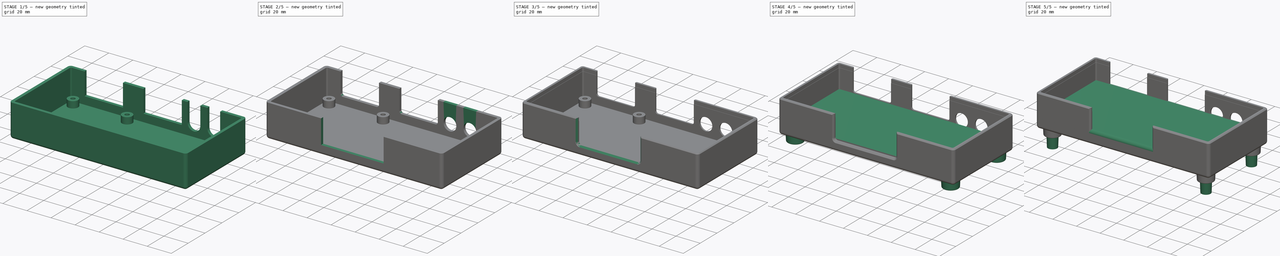
[diagram: build sequence overview — one tinted view per stage of 5, left to right]
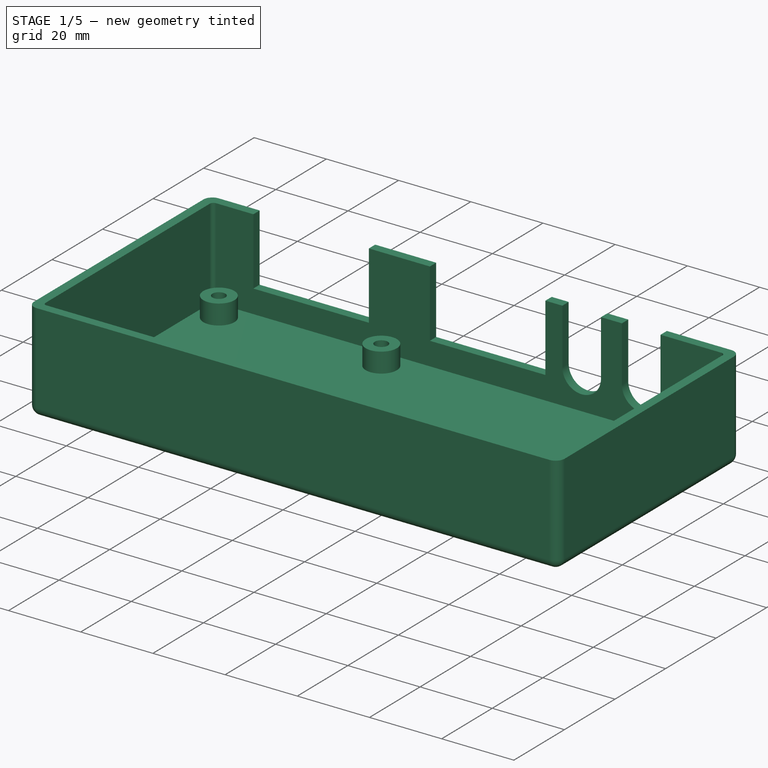
[diagram: stage 1 of 5 — iso view after this stage's code; geometry added in this stage tinted green]
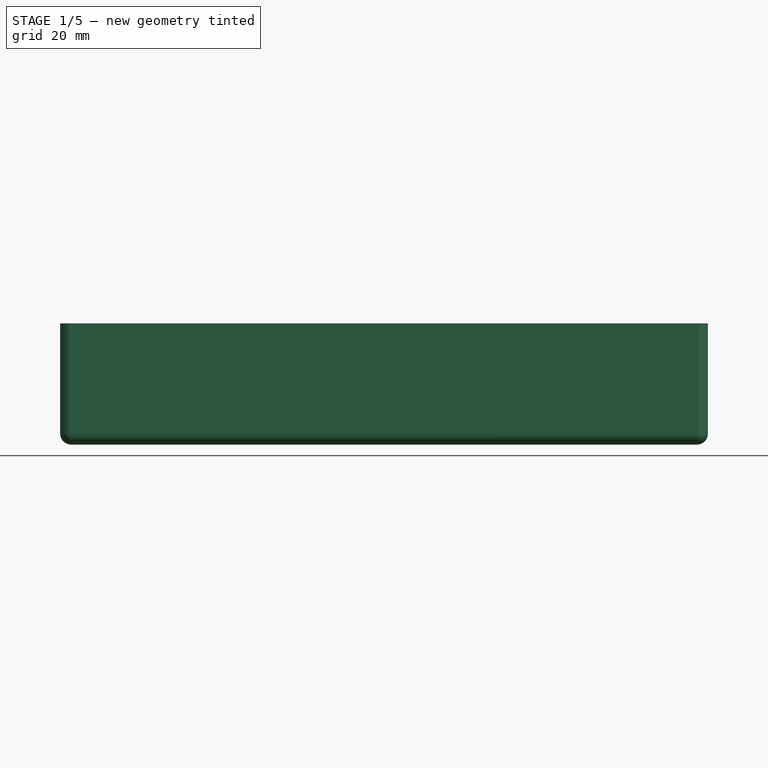
[diagram: stage 1 of 5 — front view after this stage's code; geometry added in this stage tinted green]
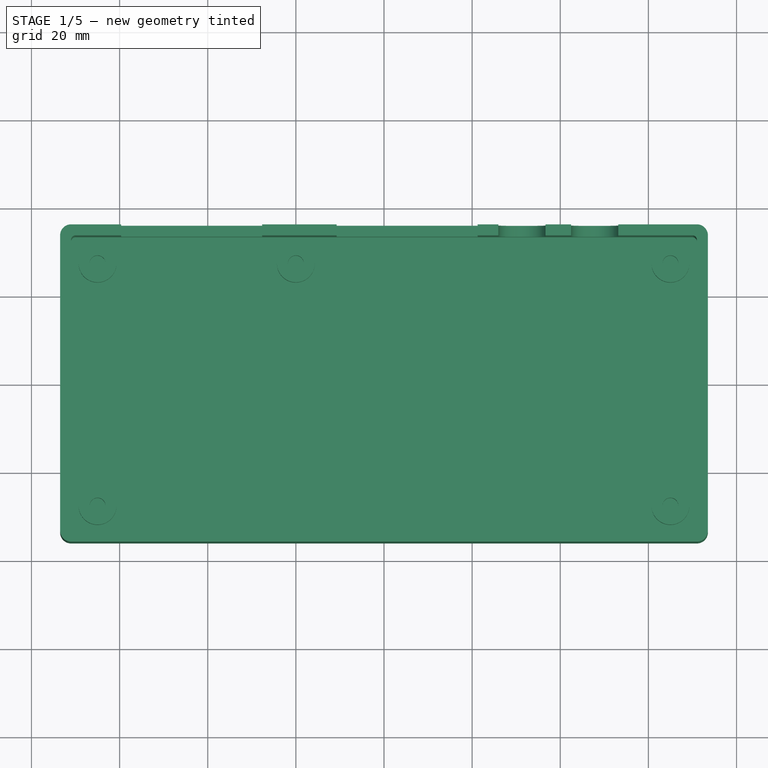
[diagram: stage 1 of 5 — top view after this stage's code; geometry added in this stage tinted green]
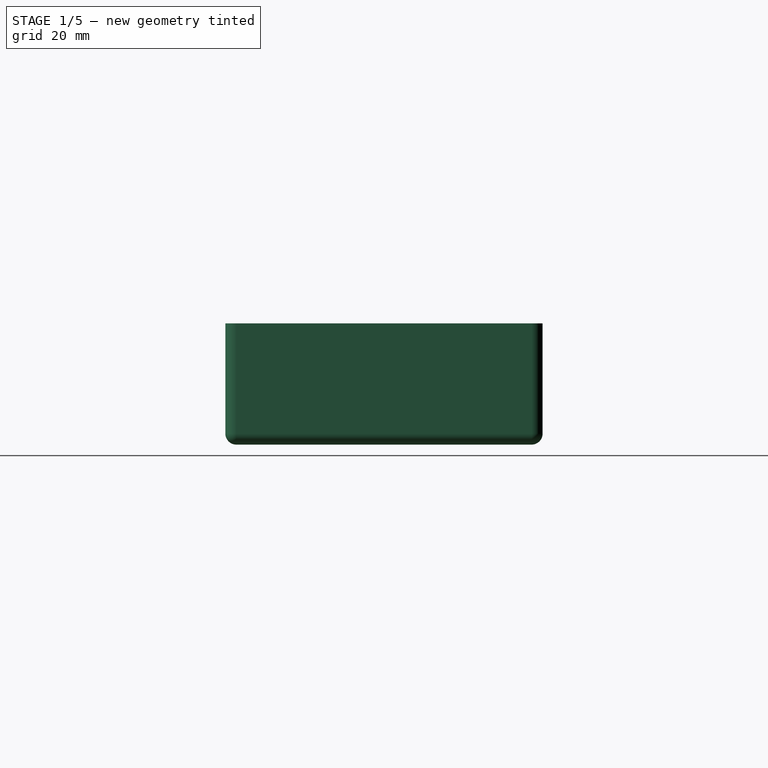
[diagram: stage 1 of 5 — right view after this stage's code; geometry added in this stage tinted green]
FCSTD DOCUMENT  (FreeCAD 0.18R14555 (Git shallow))
Label: Tape and Joystick Interface V1
License: All rights reserved
LicenseURL: http://en.wikipedia.org/wiki/All_rights_reserved
objects: Sketcher::SketchObject×11, PartDesign::Pad×6, PartDesign::Fillet×4, PartDesign::Pocket×4, PartDesign::Chamfer×4, PartDesign::Body×3, PartDesign::Thickness×2, PartDesign::Draft×1, PartDesign::Revolution×1, Part::FeaturePython×1
note: 48 computed .brp shape members not serialized (recipe doc carries the construction recipe); baked Part::Feature solids carry a one-line shape summary decoded from their .brp

FEATURE [Sketcher::SketchObject] Sketch  label="Basic Housing Spec"
  MapMode = 5
  Support = -> [XY_Plane]
  sketch-geometry (4):
    g0: LineSegment StartX=-71 StartY=33.5 StartZ=0 EndX=71 EndY=33.5 EndZ=0
    g1: LineSegment StartX=71 StartY=33.5 StartZ=0 EndX=71 EndY=-33.5 EndZ=0
    g2: LineSegment StartX=71 StartY=-33.5 StartZ=0 EndX=-71 EndY=-33.5 EndZ=0
    g3: LineSegment StartX=-71 StartY=-33.5 StartZ=0 EndX=-71 EndY=33.5 EndZ=0
  constraints (10):
    c: Coincident(g0,g1)
    c: Coincident(g1,g2)
    c: Coincident(g2,g3)
    c: Coincident(g3,g0)
    c: Horizontal(g0)
    c: Vertical(g1)
    c: Distance(g0) = 142
    c: Distance(g1) = 67
    c: Symmetric(g2,g1,g-2)
    c: Symmetric(g0,g2,g-1)
FEATURE [PartDesign::Pad] Pad  label="Make Basic Housing Base"
  Length = 25
  Length2 = 100
  Profile = -> Sketch
  Type = 0
FEATURE [PartDesign::Thickness] Thickness  label="2.5mm outside wall"
  Base = -> Pad [Face6]
  BaseFeature = -> Pad
  Join = 0
  Mode = 0
  Value = 2.5
FEATURE [Sketcher::SketchObject] Sketch001
  MapMode = 5
  Support = -> [Thickness]
  sketch-geometry (15):
    g0: Circle CenterX=-65 CenterY=-27.5 CenterZ=0 NormalX=0 NormalY=0 NormalZ=1 AngleXU=0 Radius=1.8
    g1: Circle CenterX=-65 CenterY=-27.5 CenterZ=0 NormalX=0 NormalY=0 NormalZ=1 AngleXU=0 Radius=4.3
    g2: Circle CenterX=-65 CenterY=27.5 CenterZ=0 NormalX=0 NormalY=0 NormalZ=1 AngleXU=0 Radius=1.8
    g3: Circle CenterX=-65 CenterY=27.5 CenterZ=0 NormalX=0 NormalY=0 NormalZ=1 AngleXU=0 Radius=4.3
    g4: Circle CenterX=-20 CenterY=27.5 CenterZ=0 NormalX=0 NormalY=0 NormalZ=1 AngleXU=0 Radius=1.8
    g5: Circle CenterX=-20 CenterY=27.5 CenterZ=0 NormalX=0 NormalY=0 NormalZ=1 AngleXU=0 Radius=4.3
    g6: Circle CenterX=65 CenterY=27.5 CenterZ=0 NormalX=0 NormalY=0 NormalZ=1 AngleXU=0 Radius=1.8
    g7: Circle CenterX=65 CenterY=27.5 CenterZ=0 NormalX=0 NormalY=0 NormalZ=1 AngleXU=0 Radius=4.3
    g8: Circle CenterX=65 CenterY=-27.5 CenterZ=0 NormalX=0 NormalY=0 NormalZ=1 AngleXU=0 Radius=1.8
    g9: Circle CenterX=65 CenterY=-27.5 CenterZ=0 NormalX=0 NormalY=0 NormalZ=1 AngleXU=0 Radius=4.3
    g10: LineSegment [constr] StartX=-65 StartY=25.7 StartZ=0 EndX=-65 EndY=23.2 EndZ=0
    g11: LineSegment [constr] StartX=-70 StartY=32.5 StartZ=0 EndX=70 EndY=32.5 EndZ=0
    g12: LineSegment [constr] StartX=70 StartY=32.5 StartZ=0 EndX=70 EndY=-32.5 EndZ=0
    g13: LineSegment [constr] StartX=70 StartY=-32.5 StartZ=0 EndX=-70 EndY=-32.5 EndZ=0
    g14: LineSegment [constr] StartX=-70 StartY=-32.5 StartZ=0 EndX=-70 EndY=32.5 EndZ=0
  constraints (38):
    c: Coincident(g6,g7)
    c: Coincident(g9,g8)
    c: Coincident(g0,g1)
    c: Coincident(g4,g5)
    c: Coincident(g2,g3)
    c: Radius(g2) = 1.8
    c: Equal(g2,g4)
    c: Equal(g2,g6)
    c: Equal(g2,g8)
    c: Equal(g2,g0)
    c: Equal(g3,g5)
    c: Equal(g5,g7)
    c: Equal(g7,g9)
    c: Equal(g9,g1)
    c: Perpendicular(g10,g2) = 1.5708
    c: Vertical(g10)
    c: PointOnObject(g10,g3)
    c: Distance(g10) = 2.5
    c: Coincident(g11,g12)
    c: Coincident(g12,g13)
    c: Coincident(g13,g14)
    c: Coincident(g14,g11)
    c: Horizontal(g13)
    c: Vertical(g12)
    c: Symmetric(g11,g11,g-2)
    c: Symmetric(g11,g13,g-1)
    c: Distance(g14) = 65
    c: Distance(g13) = 140
    c: DistanceX(g13,g0) = 5
    c: DistanceY(g13,g0) = 5
    c: DistanceX(g13,g8) = 135
    c: DistanceY(g12,g8) = 5
    c: DistanceX(g11,g6) = 135
    c: DistanceY(g12,g6) = 60
    c: DistanceX(g11,g2) = 5
    c: DistanceY(g13,g2) = 60
    c: DistanceX(g11,g4) = 50
    c: DistanceY(g13,g4) = 60
FEATURE [PartDesign::Pad] Pad001  label="Mounting Posts"
  BaseFeature = -> Thickness
  Length = 5.5
  Length2 = 100
  Profile = -> Sketch001
  Type = 0
FEATURE [PartDesign::Fillet] Fillet
  Base = -> Pad001 [Edge1,Edge2,Edge5,Edge8]
  BaseFeature = -> Pad001
  Radius = 1
FEATURE [Sketcher::SketchObject] Sketch002  label="Front Connector Cutout Spec"
  ExternalGeometry = -> [Fillet]
  MapMode = 5
  Placement = pos=(0,36,0) rot=(0,0.707107,0.707107;3.14159rad)
  Support = -> [Fillet]
  sketch-geometry (22):
    g0: LineSegment StartX=-21.2475 StartY=25 StartZ=0 EndX=10.7525 EndY=25 EndZ=0
    g1: LineSegment StartX=10.7525 StartY=25 StartZ=0 EndX=10.7525 EndY=6.4 EndZ=0
    g2: LineSegment StartX=10.7525 StartY=6.4 StartZ=0 EndX=-21.2475 EndY=6.4 EndZ=0
    g3: LineSegment StartX=-21.2475 StartY=6.4 StartZ=0 EndX=-21.2475 EndY=25 EndZ=0
    g4: LineSegment StartX=27.65 StartY=25 StartZ=0 EndX=59.65 EndY=25 EndZ=0
    g5: LineSegment StartX=59.65 StartY=25 StartZ=0 EndX=59.65 EndY=6.4 EndZ=0
    g6: LineSegment StartX=59.65 StartY=6.4 StartZ=0 EndX=27.65 EndY=6.4 EndZ=0
    g7: LineSegment StartX=27.65 StartY=6.4 StartZ=0 EndX=27.65 EndY=25 EndZ=0
    g8: LineSegment [constr] StartX=43.65 StartY=25 StartZ=0 EndX=43.65 EndY=6.4 EndZ=0
    g9: LineSegment [constr] StartX=-5.2475 StartY=25 StartZ=0 EndX=-5.2475 EndY=6.4 EndZ=0
    g10: GeomPoint X=70 Y=25 Z=0
    g11: GeomPoint X=-70 Y=25 Z=0
    g12: ArcOfCircle CenterX=-47.8 CenterY=25 CenterZ=0 NormalX=0 NormalY=0 NormalZ=1 AngleXU=0 Radius=5.35 StartAngle=0 EndAngle=3.14159
    g13: ArcOfCircle CenterX=-47.8 CenterY=9.6 CenterZ=0 NormalX=0 NormalY=0 NormalZ=1 AngleXU=0 Radius=5.35 StartAngle=3.14159 EndAngle=6.28319
    g14: LineSegment StartX=-53.15 StartY=25 StartZ=0 EndX=-53.15 EndY=9.6 EndZ=0
    g15: LineSegment StartX=-42.45 StartY=25 StartZ=0 EndX=-42.45 EndY=9.6 EndZ=0
    g16: ArcOfCircle CenterX=-31.3 CenterY=25 CenterZ=0 NormalX=0 NormalY=0 NormalZ=1 AngleXU=0 Radius=5.35 StartAngle=0 EndAngle=3.14159
    g17: ArcOfCircle CenterX=-31.3 CenterY=9.6 CenterZ=0 NormalX=0 NormalY=0 NormalZ=1 AngleXU=0 Radius=5.35 StartAngle=3.14159 EndAngle=6.28319
    g18: LineSegment StartX=-36.65 StartY=25 StartZ=0 EndX=-36.65 EndY=9.6 EndZ=0
    g19: LineSegment StartX=-25.95 StartY=25 StartZ=0 EndX=-25.95 EndY=9.6 EndZ=0
    g20: Circle [constr] CenterX=-31.3 CenterY=9.6 CenterZ=0 NormalX=0 NormalY=0 NormalZ=1 AngleXU=0 Radius=3
    g21: LineSegment [constr] StartX=-31.3 StartY=6.6 StartZ=0 EndX=-31.3 EndY=4.25 EndZ=0
  constraints (58):
    c: Coincident(g0,g1)
    c: Coincident(g1,g2)
    c: Coincident(g2,g3)
    c: Coincident(g3,g0)
    c: Horizontal(g0)
    c: Horizontal(g2)
    c: Vertical(g1)
    c: Vertical(g3)
    c: Coincident(g4,g5)
    c: Coincident(g5,g6)
    c: Coincident(g6,g7)
    c: Coincident(g7,g4)
    c: Horizontal(g4)
    c: Horizontal(g6)
    c: Vertical(g5)
    c: Vertical(g7)
    c: Equal(g4,g0)
    c: Equal(g7,g3)
    c: Perpendicular(g9,g0) = 1.5708
    c: Perpendicular(g8,g4) = 1.5708
    c: PointOnObject(g8,g6)
    c: PointOnObject(g9,g2)
    c: Symmetric(g0,g0,g9)
    c: Symmetric(g4,g4,g8)
    c: Symmetric(g10,g11,g-2)
    c: Distance(g10,g11) = 140
    c: PointOnObject(g10,g-3)
    c: DistanceX(g8,g10) = 26.35
    c: PointOnObject(g4,g-3)
    c: PointOnObject(g0,g-3)
    c: DistanceX(g9,g10) = 75.2475
    c: Distance(g6) = 32
    c: DistanceY(g-4,g5) = 6.4
    c: Tangent(g12,g15) = 1.5708
    c: Tangent(g12,g14) = -1.5708
    c: Tangent(g14,g13) = -1.5708
    c: Tangent(g15,g13) = 1.5708
    c: Vertical(g14)
    c: Equal(g12,g13)
    c: Tangent(g16,g19) = 1.5708
    c: Tangent(g16,g18) = -1.5708
    c: Tangent(g18,g17) = -1.5708
    c: Tangent(g19,g17) = 1.5708
    c: Vertical(g18)
    c: Equal(g16,g17)
    c: PointOnObject(g16,g-3)
    c: PointOnObject(g12,g-3)
    c: Equal(g12,g16)
    c: DistanceX(g16,g10) = 101.3
    c: DistanceX(g12,g10) = 117.8
    c: Equal(g15,g19)
    c: Coincident(g20,g17)
    c: Radius(g20) = 3
    c: Vertical(g21)
    c: Perpendicular(g21,g20) = 1.5708
    c: PointOnObject(g21,g17)
    c: Distance(g21) = 2.35
    c: DistanceY(g-4,g21) = 6.6
FEATURE [PartDesign::Pocket] Pocket  label="Cutout for front Sockets"
  BaseFeature = -> Fillet
  Length = 5
  Length2 = 100
  Profile = -> Sketch002
  Type = 0
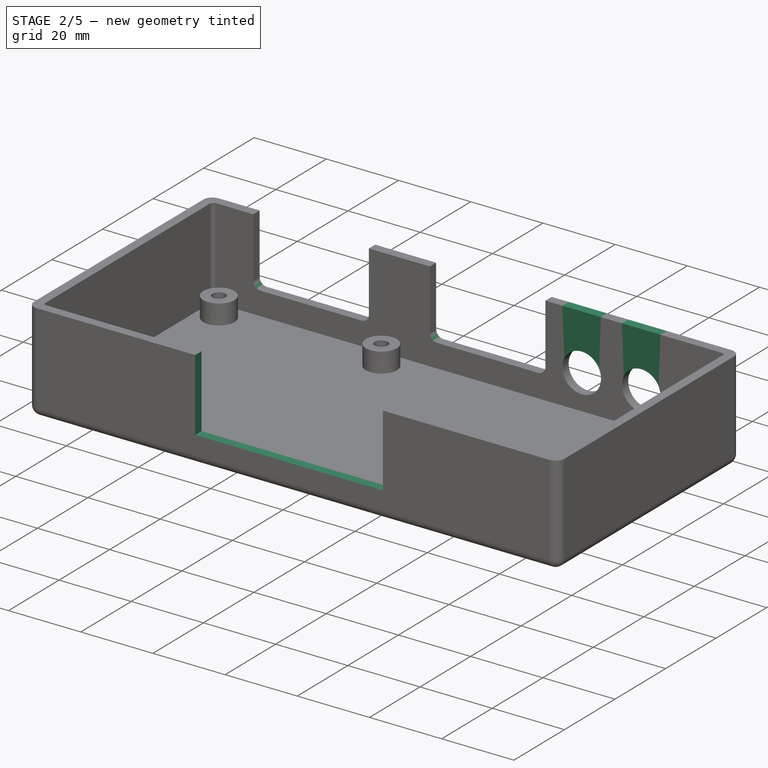
[diagram: stage 2 of 5 — iso view after this stage's code; geometry added in this stage tinted green]
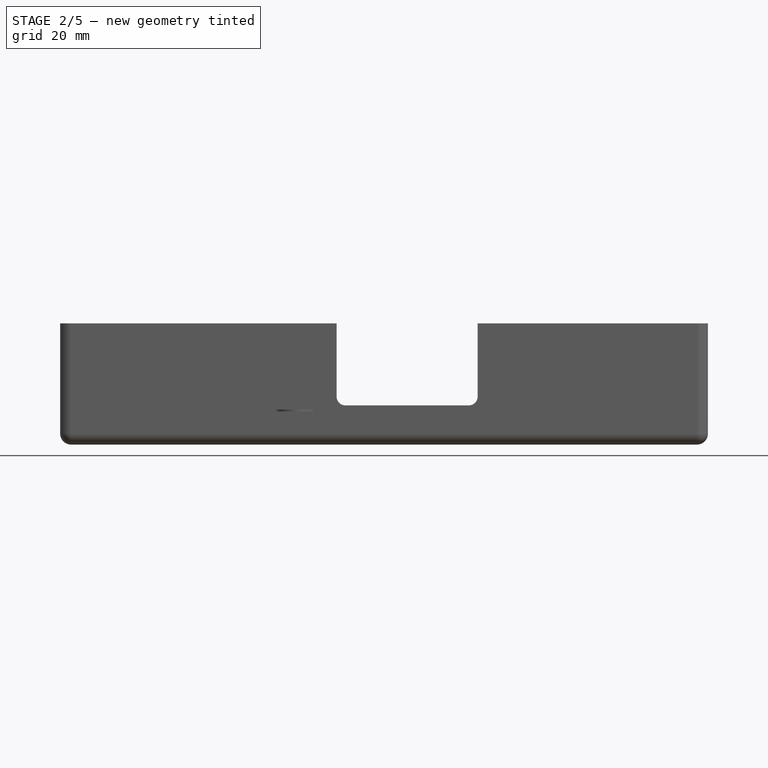
[diagram: stage 2 of 5 — front view after this stage's code; geometry added in this stage tinted green]
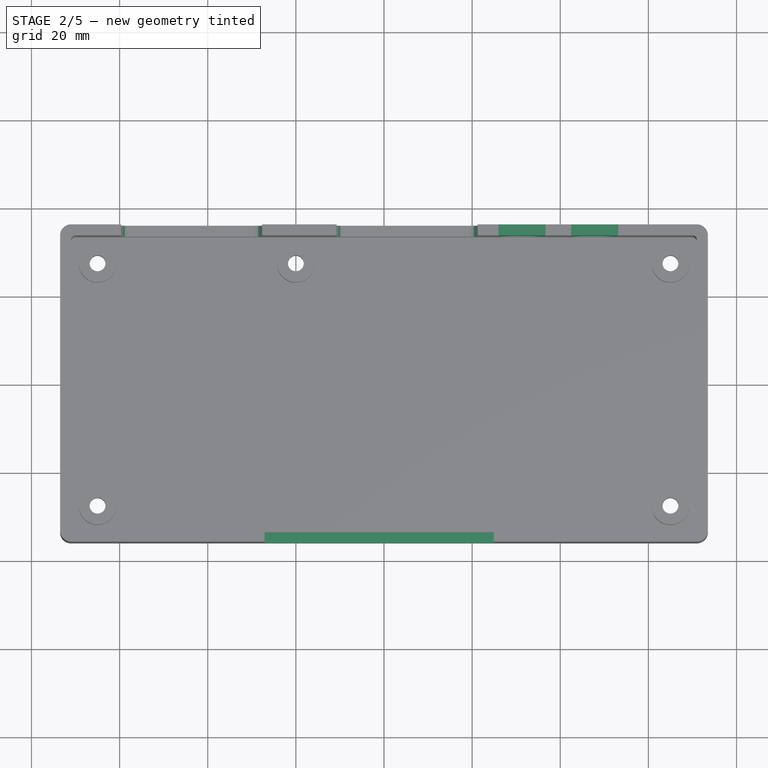
[diagram: stage 2 of 5 — top view after this stage's code; geometry added in this stage tinted green]
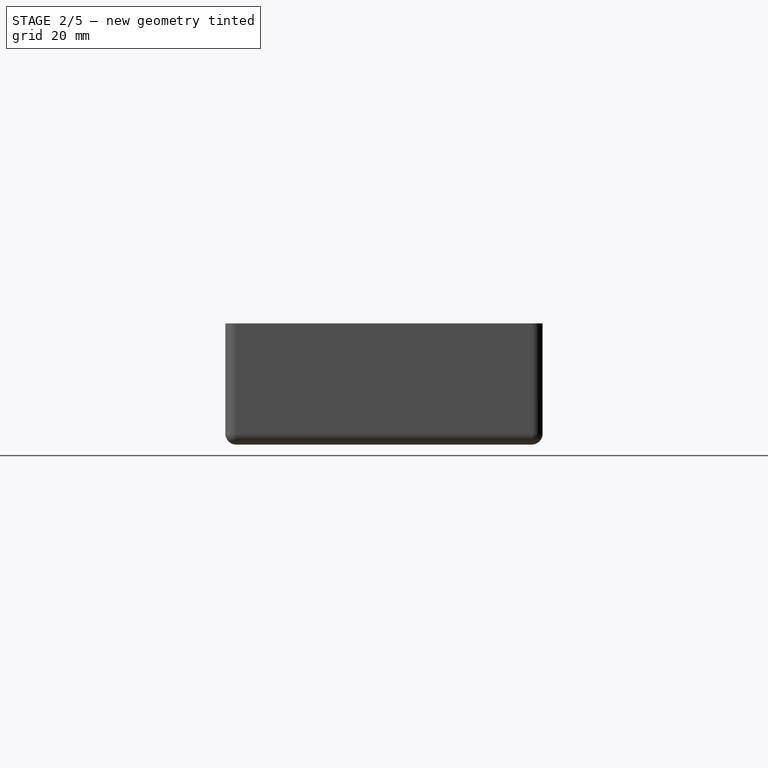
[diagram: stage 2 of 5 — right view after this stage's code; geometry added in this stage tinted green]
FEATURE [Sketcher::SketchObject] Sketch003  label="Rear Socket Cutout spec"
  ExternalGeometry = -> [Pocket]
  MapMode = 5
  Placement = pos=(-1.8e-15,-36,0) rot=(1,0,0;1.5708rad)
  Support = -> [Pocket]
  sketch-geometry (5):
    g0: LineSegment StartX=-27.1 StartY=25 StartZ=0 EndX=24.9 EndY=25 EndZ=0
    g1: LineSegment StartX=24.9 StartY=25 StartZ=0 EndX=24.9 EndY=5 EndZ=0
    g2: LineSegment StartX=24.9 StartY=5 StartZ=0 EndX=-27.1 EndY=5 EndZ=0
    g3: LineSegment StartX=-27.1 StartY=5 StartZ=0 EndX=-27.1 EndY=25 EndZ=0
    g4: LineSegment [constr] StartX=-1.1 StartY=25 StartZ=0 EndX=-1.1 EndY=5 EndZ=0
  constraints (15):
    c: Coincident(g0,g1)
    c: Coincident(g1,g2)
    c: Coincident(g2,g3)
    c: Coincident(g3,g0)
    c: Horizontal(g0)
    c: Horizontal(g2)
    c: Vertical(g1)
    c: Vertical(g3)
    c: DistanceY(g-1,g1) = 5
    c: PointOnObject(g0,g-3)
    c: Perpendicular(g4,g0) = 1.5708
    c: PointOnObject(g4,g2)
    c: Symmetric(g0,g0,g4)
    c: DistanceX(g-3,g4) = 69.9
    c: Distance(g0) = 52
FEATURE [PartDesign::Pocket] Pocket001  label="Cutout for rear Socket"
  BaseFeature = -> Pocket
  Length = 5
  Length2 = 100
  Profile = -> Sketch003
  Type = 2
FEATURE [Sketcher::SketchObject] Sketch006  label="Screwhole through bottom spec"
  ExternalGeometry = -> [Pocket001]
  MapMode = 5
  Placement = pos=(0,0,-2.5) rot=(1,0,0;3.14159rad)
  Support = -> [Pocket001]
  sketch-geometry (5):
    g0: Circle CenterX=-65 CenterY=27.5 CenterZ=0 NormalX=0 NormalY=0 NormalZ=1 AngleXU=0 Radius=1.8
    g1: Circle CenterX=65 CenterY=27.5 CenterZ=0 NormalX=0 NormalY=0 NormalZ=1 AngleXU=0 Radius=1.8
    g2: Circle CenterX=65 CenterY=-27.5 CenterZ=0 NormalX=0 NormalY=0 NormalZ=1 AngleXU=0 Radius=1.8
    g3: Circle CenterX=-20 CenterY=-27.5 CenterZ=0 NormalX=0 NormalY=0 NormalZ=1 AngleXU=0 Radius=1.8
    g4: Circle CenterX=-65 CenterY=-27.5 CenterZ=0 NormalX=0 NormalY=0 NormalZ=1 AngleXU=0 Radius=1.8
  constraints (10):
    c: Coincident(g4,g-4)
    c: Coincident(g0,g-3)
    c: Coincident(g3,g-5)
    c: Coincident(g1,g-7)
    c: Coincident(g2,g-6)
    c: Equal(g2,g1)
    c: Equal(g1,g3)
    c: Equal(g3,g4)
    c: Equal(g4,g0)
    c: Equal(g0,g-3)
FEATURE [PartDesign::Pocket] Pocket002  label="Add bottom Screwholes"
  BaseFeature = -> Pocket001
  Length = 5
  Length2 = 100
  Profile = -> Sketch006
  Type = 1
FEATURE [PartDesign::Body] Body001  label="Box Lid"
  Group = -> [Sketch004,Pad002,Thickness001,Sketch005,Pad003,Sketch007,Pad004,Chamfer,Draft]
  Origin = -> Origin001
  Placement = pos=(0,0,25) rot=(0,0,1;0rad)
  Tip = -> Draft
FEATURE [Sketcher::SketchObject] Sketch008  label="Jack Socket top section repair (my bad)"
  ExternalGeometry = -> [Pocket002]
  MapMode = 5
  Placement = pos=(0,36,0) rot=(0,0.707107,0.707107;3.14159rad)
  Support = -> [Pocket002]
  sketch-geometry (8):
    g0: ArcOfCircle CenterX=-47.8 CenterY=9.6 CenterZ=0 NormalX=0 NormalY=0 NormalZ=1 AngleXU=0 Radius=5.35 StartAngle=-9e-16 EndAngle=3.14159
    g1: ArcOfCircle CenterX=-31.3 CenterY=9.6 CenterZ=0 NormalX=0 NormalY=0 NormalZ=1 AngleXU=0 Radius=5.35 StartAngle=-1.37268e-11 EndAngle=3.14159
    g2: LineSegment StartX=-36.65 StartY=9.6 StartZ=0 EndX=-36.65 EndY=25 EndZ=0
    g3: LineSegment StartX=-36.65 StartY=25 StartZ=0 EndX=-25.95 EndY=25 EndZ=0
    g4: LineSegment StartX=-25.95 StartY=25 StartZ=0 EndX=-25.95 EndY=9.6 EndZ=0
    g5: LineSegment StartX=-53.15 StartY=9.6 StartZ=0 EndX=-53.15 EndY=25 EndZ=0
    g6: LineSegment StartX=-53.15 StartY=25 StartZ=0 EndX=-42.45 EndY=25 EndZ=0
    g7: LineSegment StartX=-42.45 StartY=25 StartZ=0 EndX=-42.45 EndY=9.6 EndZ=0
  constraints (19):
    c: Coincident(g2,g3)
    c: Coincident(g3,g4)
    c: Coincident(g5,g6)
    c: Coincident(g6,g7)
    c: Coincident(g-4,g1)
    c: Tangent(g1,g-4) = -1.5708
    c: Tangent(g4,g1) = 1.5708
    c: Horizontal(g3)
    c: Coincident(g7,g0)
    c: Coincident(g5,g0)
    c: Vertical(g5)
    c: Vertical(g7)
    c: Horizontal(g6)
    c: Equal(g7,g2)
    c: Coincident(g2,g-5)
    c: Coincident(g0,g-3)
    c: Coincident(g0,g-3)
    c: Coincident(g0,g-3)
    c: Coincident(g1,g2)
FEATURE [PartDesign::Pad] Pad005  label="Replace Missing Material for sockets"
  BaseFeature = -> Pocket002
  Length = 2.5
  Length2 = 100
  Profile = -> Sketch008
  Reversed = true
  Type = 0
FEATURE [PartDesign::Fillet] Fillet001  label="Decorative Fillet for joystick cutouts"
  Base = -> Pad005 [Edge78,Edge74,Edge62,Edge58]
  BaseFeature = -> Pad005
  Radius = 2
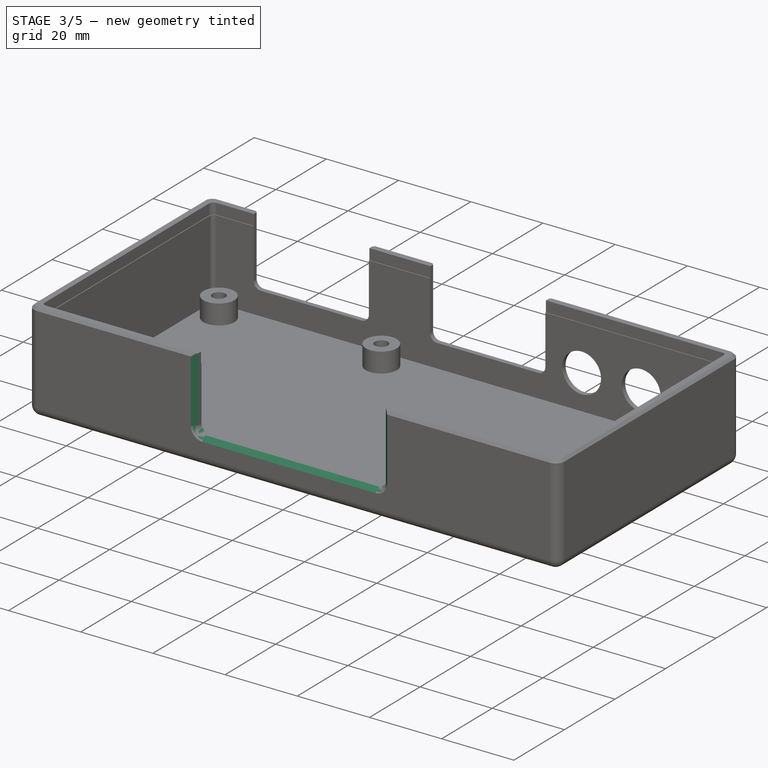
[diagram: stage 3 of 5 — iso view after this stage's code; geometry added in this stage tinted green]
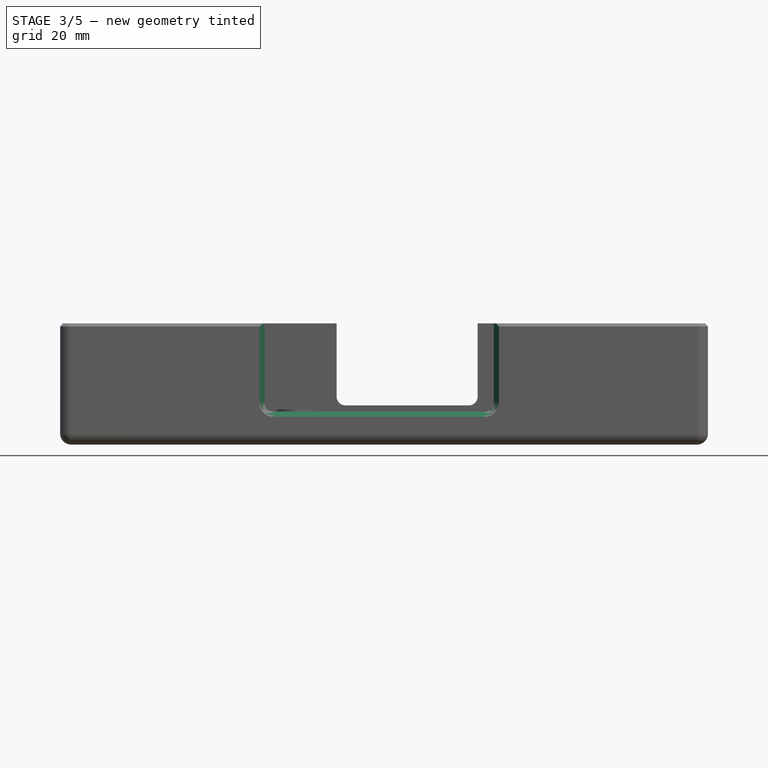
[diagram: stage 3 of 5 — front view after this stage's code; geometry added in this stage tinted green]
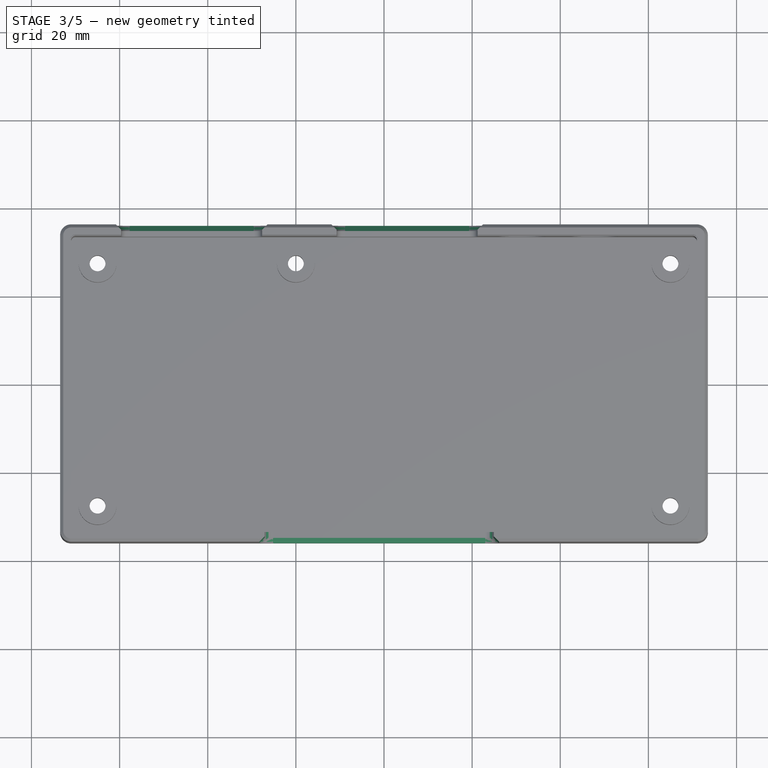
[diagram: stage 3 of 5 — top view after this stage's code; geometry added in this stage tinted green]
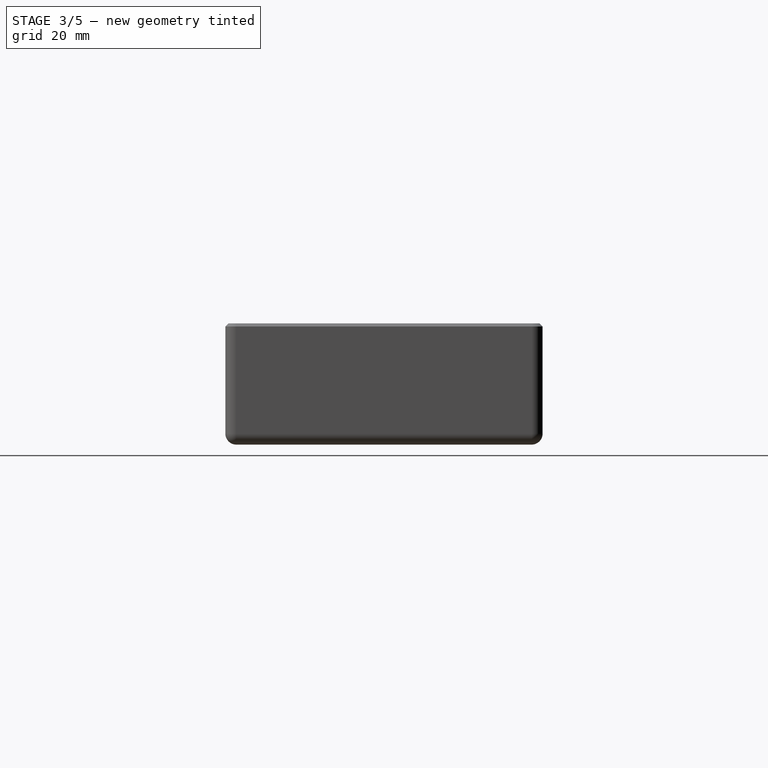
[diagram: stage 3 of 5 — right view after this stage's code; geometry added in this stage tinted green]
FEATURE [PartDesign::Chamfer] Chamfer001  label="Decorative Chamfer for front sockets face"
  Base = -> Fillet001 [Edge95,Edge79,Edge82,Edge40]
  BaseFeature = -> Fillet001
  Size = 1.2
FEATURE [PartDesign::Fillet] Fillet002  label="Rear Socket decorative fillets"
  Base = -> Chamfer001 [Edge183,Edge144]
  BaseFeature = -> Chamfer001
  Radius = 2
FEATURE [PartDesign::Chamfer] Chamfer002  label="Decorative chamfer for rear socket"
  Base = -> Fillet002 [Edge27]
  BaseFeature = -> Fillet002
  Size = 1.2
FEATURE [Sketcher::SketchObject] Sketch010  label="Clearance cut for lid lip spec"
  ExternalGeometry = -> [Chamfer002]
  MapMode = 5
  Placement = pos=(0,0,25) rot=(0,0,1;0rad)
  Support = -> [Chamfer002]
  sketch-geometry (8):
    g0: LineSegment StartX=-70 StartY=33.7 StartZ=0 EndX=70 EndY=33.7 EndZ=0
    g1: LineSegment StartX=71.2 StartY=32.5 StartZ=0 EndX=71.2 EndY=-32.5 EndZ=0
    g2: LineSegment StartX=70 StartY=-33.7 StartZ=0 EndX=-70 EndY=-33.7 EndZ=0
    g3: LineSegment StartX=-71.2 StartY=-32.5 StartZ=0 EndX=-71.2 EndY=32.5 EndZ=0
    g4: ArcOfCircle CenterX=-70 CenterY=32.5 CenterZ=0 NormalX=0 NormalY=0 NormalZ=1 AngleXU=0 Radius=1.2 StartAngle=1.5708 EndAngle=3.14159
    g5: ArcOfCircle CenterX=-70 CenterY=-32.5 CenterZ=0 NormalX=0 NormalY=0 NormalZ=1 AngleXU=0 Radius=1.2 StartAngle=3.14159 EndAngle=4.71239
    g6: ArcOfCircle CenterX=70 CenterY=-32.5 CenterZ=0 NormalX=0 NormalY=0 NormalZ=1 AngleXU=0 Radius=1.2 StartAngle=4.71239 EndAngle=6.28319
    g7: ArcOfCircle CenterX=70 CenterY=32.5 CenterZ=0 NormalX=0 NormalY=0 NormalZ=1 AngleXU=0 Radius=1.2 StartAngle=2.7e-15 EndAngle=1.5708
  constraints (17):
    c: Horizontal(g2)
    c: Vertical(g1)
    c: Vertical(g3)
    c: Tangent(g0,g4) = 1.5708
    c: Tangent(g3,g4) = 1.5708
    c: Tangent(g2,g5) = 1.5708
    c: Tangent(g3,g5) = 1.5708
    c: Tangent(g1,g6) = 1.5708
    c: Tangent(g2,g6) = 1.5708
    c: Tangent(g0,g7) = 1.5708
    c: Tangent(g1,g7) = 1.5708
    c: Equal(g7,g4)
    c: Equal(g4,g5)
    c: Coincident(g4,g-3)
    c: DistanceY(g-3,g0) = 0.2
    c: Symmetric(g0,g0,g-2)
    c: Symmetric(g0,g2,g-1)
FEATURE [PartDesign::Pocket] Pocket003  label="Clearance Cut for lid lip"
  BaseFeature = -> Chamfer002
  Length = 3
  Length2 = 100
  Profile = -> Sketch010
  Type = 0
FEATURE [PartDesign::Chamfer] Chamfer003  label="Top edge decorative chamfer"
  Base = -> Pocket003 [Edge17,Edge71,Edge206]
  BaseFeature = -> Pocket003
  Size = 0.7
FEATURE [PartDesign::Body] Body  label="Box Base"
  Group = -> [Sketch,Pad,Thickness,Sketch001,Pad001,Fillet,Sketch002,Pocket,Sketch003,Pocket001,Sketch006,Pocket002,Sketch008,Pad005,Fillet001,Chamfer001,Fillet002,Chamfer002,Sketch010,Pocket003,Chamfer003]
  Origin = -> Origin
  Tip = -> Chamfer003
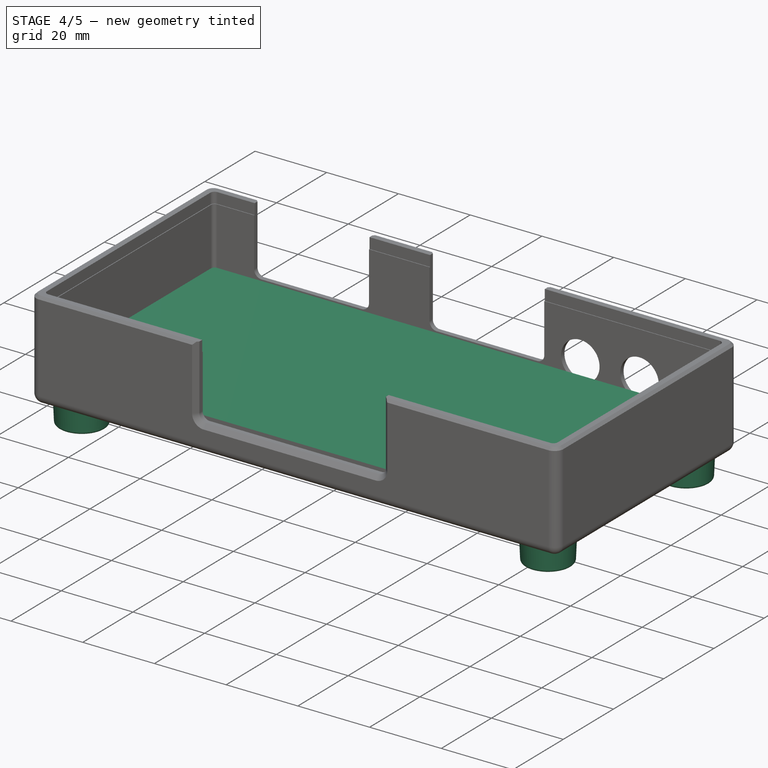
[diagram: stage 4 of 5 — iso view after this stage's code; geometry added in this stage tinted green]
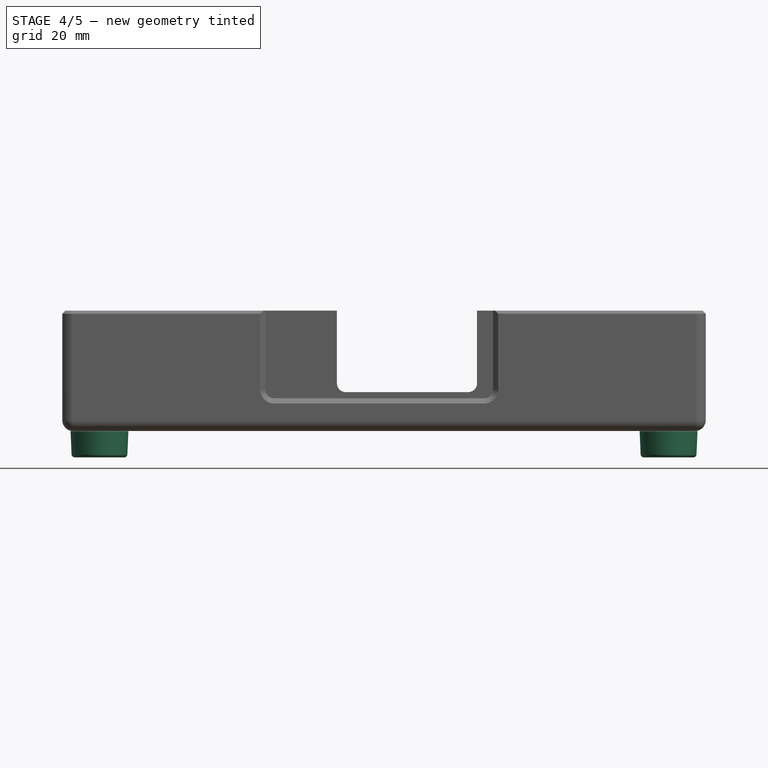
[diagram: stage 4 of 5 — front view after this stage's code; geometry added in this stage tinted green]
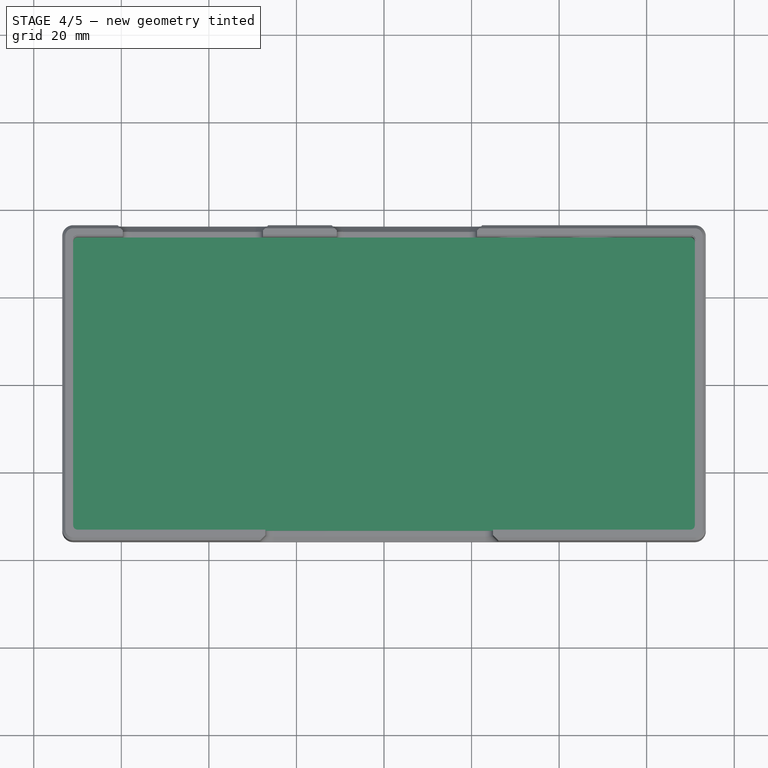
[diagram: stage 4 of 5 — top view after this stage's code; geometry added in this stage tinted green]
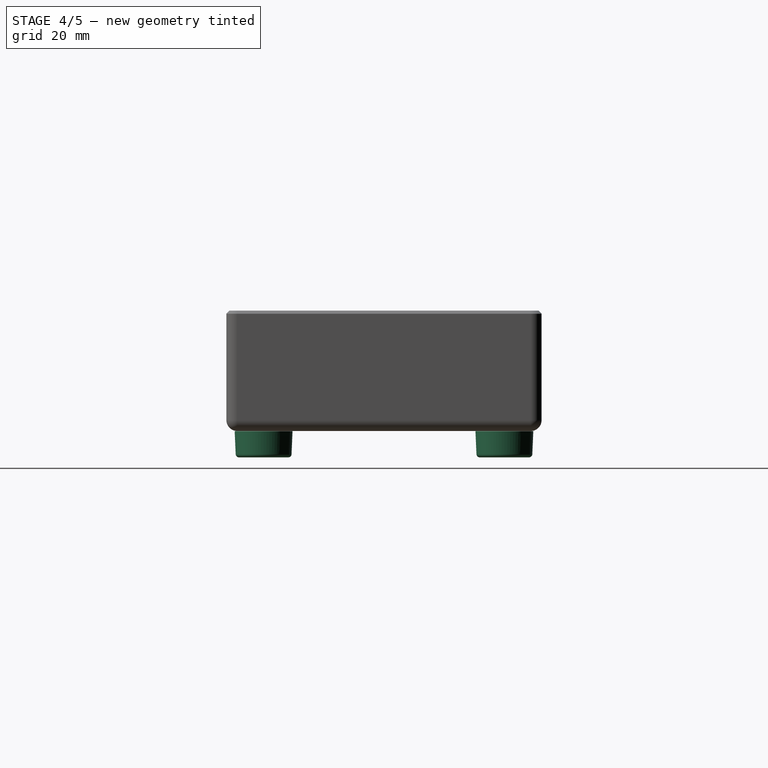
[diagram: stage 4 of 5 — right view after this stage's code; geometry added in this stage tinted green]
FEATURE [Sketcher::SketchObject] Sketch004  label="Basic Lid Spec"
  MapMode = 5
  Support = -> [XY_Plane001]
  sketch-geometry (4):
    g0: LineSegment StartX=-71 StartY=33.5 StartZ=0 EndX=71 EndY=33.5 EndZ=0
    g1: LineSegment StartX=71 StartY=33.5 StartZ=0 EndX=71 EndY=-33.5 EndZ=0
    g2: LineSegment StartX=71 StartY=-33.5 StartZ=0 EndX=-71 EndY=-33.5 EndZ=0
    g3: LineSegment StartX=-71 StartY=-33.5 StartZ=0 EndX=-71 EndY=33.5 EndZ=0
  constraints (10):
    c: Coincident(g0,g1)
    c: Coincident(g1,g2)
    c: Coincident(g2,g3)
    c: Coincident(g3,g0)
    c: Horizontal(g0)
    c: Vertical(g1)
    c: Distance(g0) = 142
    c: Distance(g1) = 67
    c: Symmetric(g2,g1,g-2)
    c: Symmetric(g0,g2,g-1)
FEATURE [PartDesign::Pad] Pad002  label="Make Lid Block"
  Length = 6
  Length2 = 100
  Profile = -> Sketch004
  Type = 0
FEATURE [Sketcher::SketchObject] Sketch009  label="Foot spec"
  MapMode = 5
  Placement = pos=(0,0,0) rot=(1,0,0;1.5708rad)
  Support = -> [XZ_Plane002]
  sketch-geometry (8):
    g0: LineSegment StartX=6.35 StartY=-8.51 StartZ=0 EndX=3.75 EndY=-8.51 EndZ=0
    g1: LineSegment StartX=1.75 StartY=-2.51 StartZ=0 EndX=6.61197 EndY=-2.51 EndZ=0
    g2: LineSegment StartX=6.61197 StartY=-2.51 StartZ=0 EndX=6.35 EndY=-8.51 EndZ=0
    g3: GeomPoint X=-1.75 Y=-2.51 Z=0
    g4: LineSegment StartX=1.75 StartY=-2.51 StartZ=0 EndX=1.75 EndY=-5.01 EndZ=0
    g5: LineSegment StartX=1.75 StartY=-5.01 StartZ=0 EndX=3.75 EndY=-5.01 EndZ=0
    g6: LineSegment StartX=3.75 StartY=-5.01 StartZ=0 EndX=3.75 EndY=-8.51 EndZ=0
    g7: GeomPoint X=-3.75 Y=-5.01 Z=0
  constraints (20):
    c: Coincident(g1,g2)
    c: Coincident(g2,g0)
    c: Horizontal(g1)
    c: Symmetric(g3,g1,g-2)
    c: Coincident(g4,g5)
    c: Coincident(g5,g6)
    c: Coincident(g0,g6)
    c: Vertical(g6)
    c: Horizontal(g5)
    c: Vertical(g4)
    c: Coincident(g4,g1)
    c: Distance(g1,g3) = 3.5
    c: Horizontal(g0)
    c: Distance(g0) = 2.6
    c: Angle(g1,g2) = 1.52716
    c: Symmetric(g7,g5,g-2)
    c: Distance(g4) = 2.5
    c: Distance(g6) = 3.5
    c: DistanceY(g1,g-1) = 2.51
    c: DistanceX(g7,g5) = 7.5
FEATURE [PartDesign::Revolution] Revolution  label="Make foot"
  Angle = 360
  Axis = (0,2e-16,1)
  Base = (0,0,0)
  Placement = pos=(0,0,0) rot=(1,0,0;1.5708rad)
  Profile = -> Sketch009
  ReferenceAxis = -> Sketch009 [V_Axis]
  Reversed = true
FEATURE [PartDesign::Fillet] Fillet003
  Base = -> Revolution [Edge3]
  BaseFeature = -> Revolution
  Placement = pos=(0,0,0) rot=(1,0,0;1.5708rad)
  Radius = 0.75
FEATURE [PartDesign::Body] Body002  label="Foot"
  Group = -> [Sketch009,Revolution,Fillet003]
  Origin = -> Origin002
  Placement = pos=(-65,-27.5,0) rot=(0,0,1;0rad)
  Tip = -> Fillet003
FEATURE [Part::FeaturePython] Array  label="Set of feet"  # Draft array (typed FeaturePython)
  Angle = 360
  ArrayType = 0
  Axis = (0,0,1)
  Base = -> Body002
  Center = (0,0,0)
  Fuse = false
  IntervalAxis = (0,0,0)
  IntervalX = (130,0,0)
  IntervalY = (0,55,0)
  IntervalZ = (0,0,1)
  NumberPolar = 1
  NumberX = 2
  NumberY = 2
  NumberZ = 1
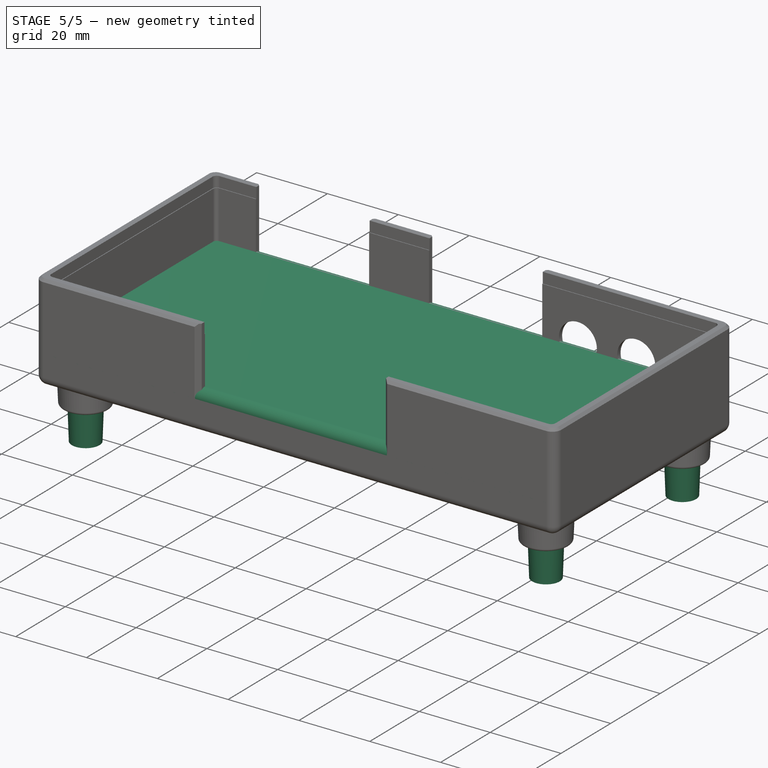
[diagram: stage 5 of 5 — iso view after this stage's code; geometry added in this stage tinted green]
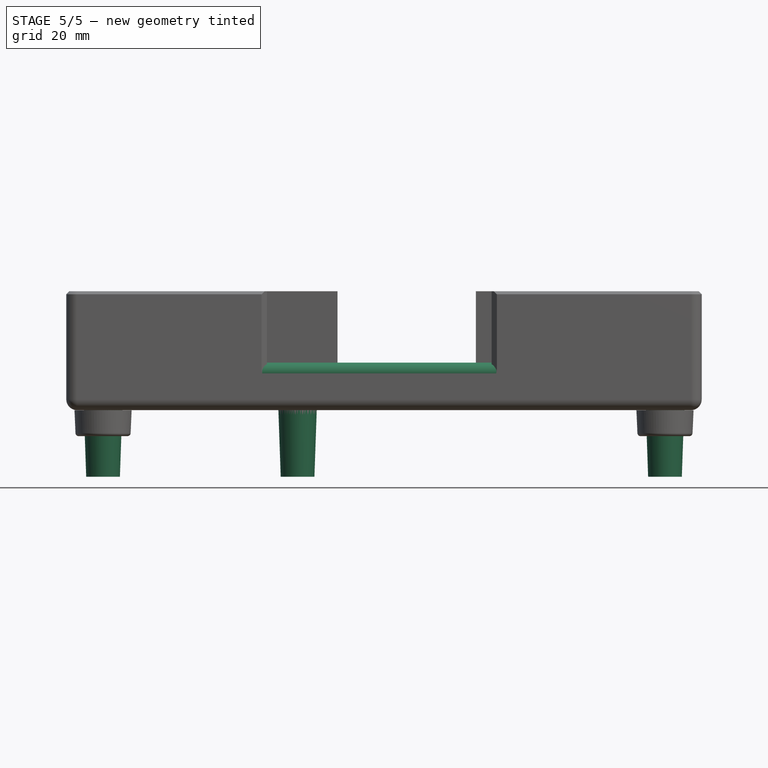
[diagram: stage 5 of 5 — front view after this stage's code; geometry added in this stage tinted green]
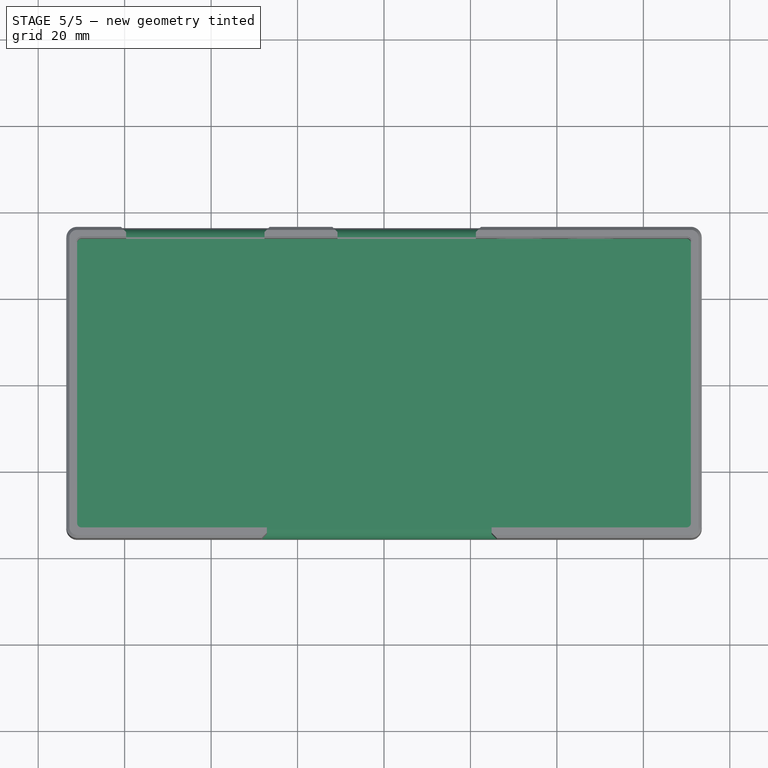
[diagram: stage 5 of 5 — top view after this stage's code; geometry added in this stage tinted green]
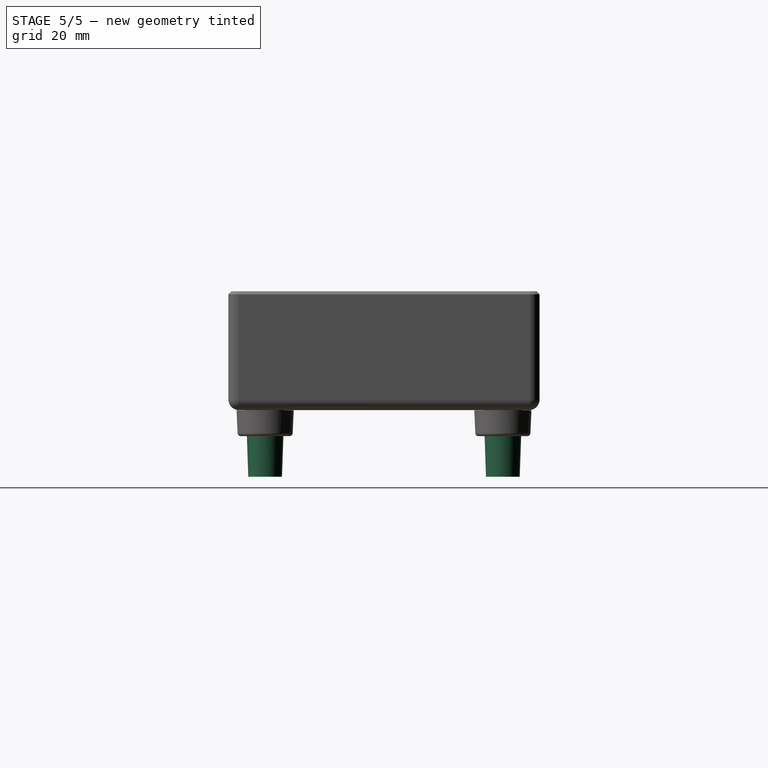
[diagram: stage 5 of 5 — right view after this stage's code; geometry added in this stage tinted green]
FEATURE [PartDesign::Thickness] Thickness001  label="Make Lid"
  Base = -> Pad002 [Face5]
  BaseFeature = -> Pad002
  Join = 0
  Mode = 0
  Value = 2.5
FEATURE [Sketcher::SketchObject] Sketch005  label="Lid inside lip spec"
  ExternalGeometry = -> [Thickness001]
  MapMode = 5
  Placement = pos=(0,0,6) rot=(1,0,0;3.14159rad)
  Support = -> [Thickness001]
  sketch-geometry (8):
    g0: LineSegment StartX=-71 StartY=33.5 StartZ=0 EndX=71 EndY=33.5 EndZ=0
    g1: LineSegment StartX=71 StartY=33.5 StartZ=0 EndX=71 EndY=-33.5 EndZ=0
    g2: LineSegment StartX=71 StartY=-33.5 StartZ=0 EndX=-71 EndY=-33.5 EndZ=0
    g3: LineSegment StartX=-71 StartY=-33.5 StartZ=0 EndX=-71 EndY=33.5 EndZ=0
    g4: LineSegment StartX=-68.5 StartY=31 StartZ=0 EndX=68.5 EndY=31 EndZ=0
    g5: LineSegment StartX=68.5 StartY=31 StartZ=0 EndX=68.5 EndY=-31 EndZ=0
    g6: LineSegment StartX=68.5 StartY=-31 StartZ=0 EndX=-68.5 EndY=-31 EndZ=0
    g7: LineSegment StartX=-68.5 StartY=-31 StartZ=0 EndX=-68.5 EndY=31 EndZ=0
  constraints (19):
    c: Coincident(g0,g1)
    c: Coincident(g1,g2)
    c: Coincident(g2,g3)
    c: Coincident(g3,g0)
    c: Horizontal(g2)
    c: Vertical(g3)
    c: Coincident(g4,g5)
    c: Coincident(g5,g6)
    c: Coincident(g6,g7)
    c: Coincident(g7,g4)
    c: Horizontal(g6)
    c: Vertical(g7)
    c: DistanceX(g5,g1) = 2.5
    c: DistanceY(g1,g5) = 2.5
    c: Symmetric(g1,g0,g-1)
    c: Symmetric(g4,g5,g-1)
    c: Symmetric(g4,g4,g-2)
    c: Symmetric(g0,g0,g-2)
    c: Coincident(g-3,g0)
FEATURE [PartDesign::Pad] Pad003  label="Make Lid inside lip"
  BaseFeature = -> Thickness001
  Length = 8
  Length2 = 100
  Profile = -> Sketch005
  Type = 0
FEATURE [Sketcher::SketchObject] Sketch007  label="Top Pillar Spec"
  MapMode = 5
  Placement = pos=(0,0,6) rot=(1,0,0;3.14159rad)
  Support = -> [Pad003]
  sketch-geometry (15):
    g0: Circle CenterX=-65 CenterY=27.5 CenterZ=0 NormalX=0 NormalY=0 NormalZ=1 AngleXU=0 Radius=3.9
    g1: Circle CenterX=65 CenterY=27.5 CenterZ=0 NormalX=0 NormalY=0 NormalZ=1 AngleXU=0 Radius=3.9
    g2: Circle CenterX=-65 CenterY=-27.5 CenterZ=0 NormalX=0 NormalY=0 NormalZ=1 AngleXU=0 Radius=3.9
    g3: Circle CenterX=-20 CenterY=-27.5 CenterZ=0 NormalX=0 NormalY=0 NormalZ=1 AngleXU=0 Radius=3.9
    g4: Circle CenterX=65 CenterY=-27.5 CenterZ=0 NormalX=0 NormalY=0 NormalZ=1 AngleXU=0 Radius=3.9
    g5: Circle CenterX=-65 CenterY=27.5 CenterZ=0 NormalX=0 NormalY=0 NormalZ=1 AngleXU=0 Radius=1.4
    g6: Circle CenterX=65 CenterY=27.5 CenterZ=0 NormalX=0 NormalY=0 NormalZ=1 AngleXU=0 Radius=1.4
    g7: Circle CenterX=-65 CenterY=-27.5 CenterZ=0 NormalX=0 NormalY=0 NormalZ=1 AngleXU=0 Radius=1.4
    g8: Circle CenterX=-20 CenterY=-27.5 CenterZ=0 NormalX=0 NormalY=0 NormalZ=1 AngleXU=0 Radius=1.4
    g9: Circle CenterX=65 CenterY=-27.5 CenterZ=0 NormalX=0 NormalY=0 NormalZ=1 AngleXU=0 Radius=1.4
    g10: LineSegment [constr] StartX=65 StartY=26.1 StartZ=0 EndX=65 EndY=23.6 EndZ=0
    g11: LineSegment [constr] StartX=-70 StartY=32.5 StartZ=0 EndX=70 EndY=32.5 EndZ=0
    g12: LineSegment [constr] StartX=70 StartY=32.5 StartZ=0 EndX=70 EndY=-32.5 EndZ=0
    g13: LineSegment [constr] StartX=70 StartY=-32.5 StartZ=0 EndX=-70 EndY=-32.5 EndZ=0
    g14: LineSegment [constr] StartX=-70 StartY=-32.5 StartZ=0 EndX=-70 EndY=32.5 EndZ=0
  constraints (38):
    c: Radius(g9) = 1.4
    c: Equal(g9,g8)
    c: Equal(g9,g7)
    c: Equal(g9,g5)
    c: Equal(g9,g6)
    c: Coincident(g4,g9)
    c: Coincident(g1,g6)
    c: Coincident(g0,g5)
    c: Coincident(g8,g3)
    c: Coincident(g2,g7)
    c: Equal(g4,g1)
    c: Equal(g1,g0)
    c: Equal(g0,g3)
    c: Equal(g3,g2)
    c: Vertical(g10)
    c: Perpendicular(g10,g6) = 1.5708
    c: PointOnObject(g10,g1)
    c: Distance(g10) = 2.5
    c: Coincident(g11,g12)
    c: Coincident(g12,g13)
    c: Coincident(g13,g14)
    c: Coincident(g14,g11)
    c: Horizontal(g13)
    c: Vertical(g12)
    c: Symmetric(g11,g11,g-2)
    c: Symmetric(g11,g13,g-1)
    c: Distance(g11) = 140
    c: Distance(g14) = 65
    c: DistanceX(g1,g11) = 5
    c: DistanceY(g1,g11) = 5
    c: DistanceY(g0,g11) = 5
    c: DistanceX(g0,g11) = 135
    c: DistanceX(g4,g12) = 5
    c: DistanceY(g4,g11) = 60
    c: DistanceY(g3,g11) = 60
    c: DistanceX(g13,g3) = 50
    c: DistanceY(g2,g11) = 60
    c: DistanceX(g2,g11) = 135
FEATURE [PartDesign::Pad] Pad004  label="Add Top Pillars"
  BaseFeature = -> Pad003
  Length = 23.9
  Length2 = 100
  Profile = -> Sketch007
  Type = 0
FEATURE [PartDesign::Chamfer] Chamfer  label="Lead-in Chamfer for screws"
  Base = -> Pad004 [Edge105,Edge54,Edge108,Edge107,Edge106]
  BaseFeature = -> Pad004
  Size = 1
FEATURE [PartDesign::Draft] Draft  label="Widen Pillar Bases"
  Angle = 2
  Base = -> Chamfer [Face17,Face19,Face3,Face13,Face15]
  BaseFeature = -> Chamfer
  NeutralPlane = -> Chamfer [Face36]
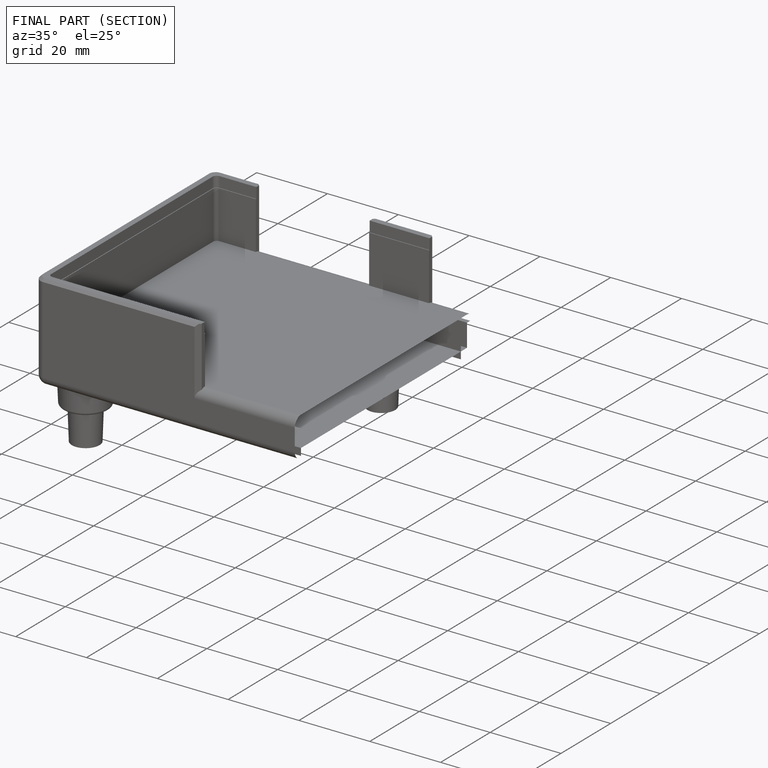
[diagram: finished part — half-section view (interior)]
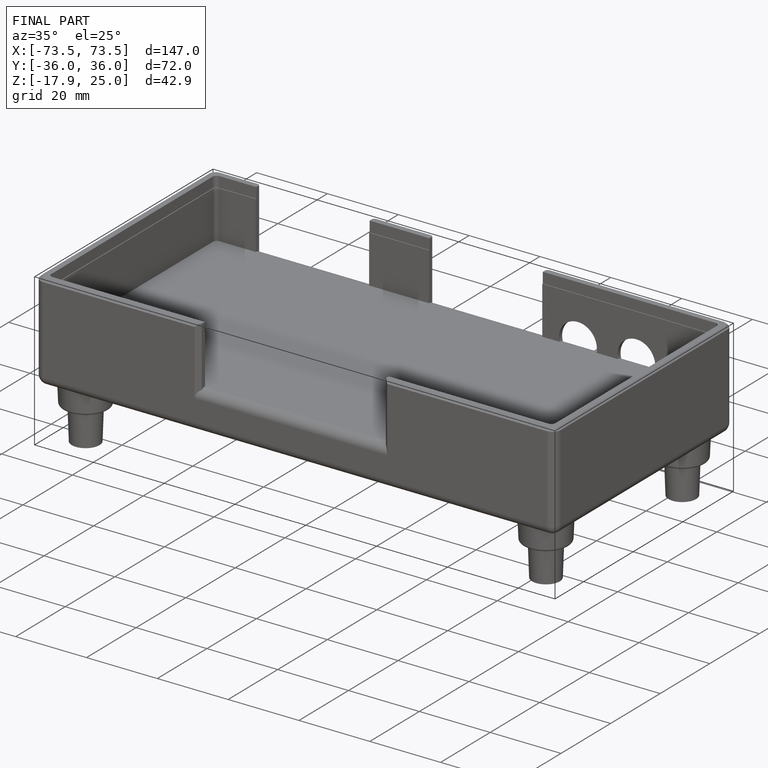
[diagram: finished part — iso view with bounding-box wireframe]
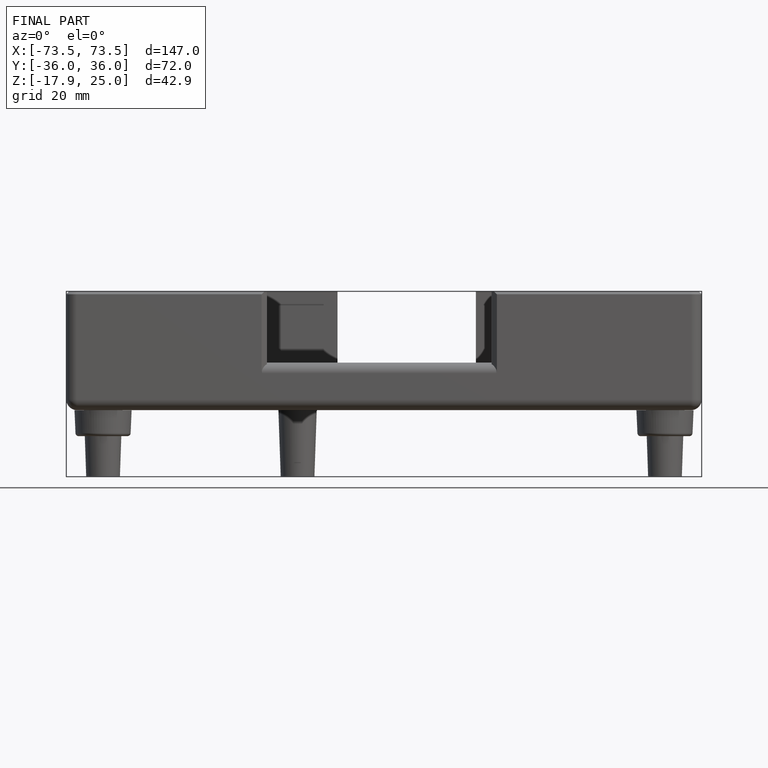
[diagram: finished part — front view with bounding-box wireframe]
